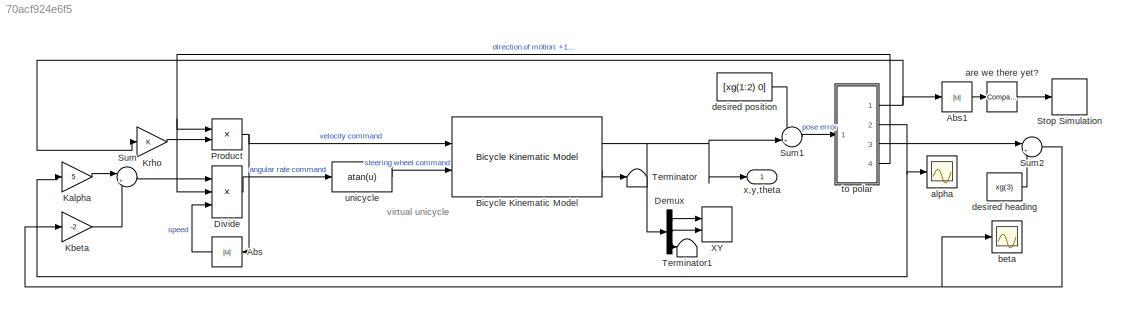
MODEL slx_70acf924e6f5
KIND model
CONFIG AbsTol = auto
CONFIG EnableMultiTasking = on
CONFIG FixedStep = auto
CONFIG InitFcn = if exist('x0')\n  assert(length(x0) == 3, 'x0 must be a 3-vector');\nelse\n  x0 = [9 5 0];\n  msgbox(sprintf('x0 not defined in workspace, setting it to [%g %g %g]\n', x0));\nend\nif exist('xg')\n  assert(length(xg) == 3, 'xg must be a 3-vector');\nelse\n  xg = [5 5 pi/2];\n  msgbox(sprintf('xg not defined in workspace, setting it to [%g %g %g]\n', xg));\nend\n% clean up old vehicle icons\nset(0, 'ShowHiddenHa...<+82ch>
CONFIG MaxStep = 0.05
CONFIG MinStep = auto
CONFIG RelTol = 1e-3
CONFIG SampleTimeConstraint = Unconstrained
CONFIG SolverName = ode45
CONFIG StartTime = 0.0
CONFIG StopFcn = % update the XY scope\nset(0, 'ShowHiddenHandles', 'on')\nfig = findobj('name', 'XY');\nax = findobj(fig, 'type', 'axes');\naxes(ax)\ngrid on\nhold on\nplotvehicle(x0, 'r', 'Tag', 'vehicle')\nplotvehicle(xg, 'b', 'Tag', 'vehicle')\nhold off\nset(0, 'ShowHiddenHandles', 'off')
CONFIG StopTime = 20.0
BLOCK [Abs] Abs
  SaturateOnIntegerOverflow = off
BLOCK [Abs] Abs1
  SaturateOnIntegerOverflow = off
BLOCK [Reference] Bicycle Kinematic Model  REF=robotmobilelib/Bicycle Kinematic Model
  Ports = [2, 2]
  SourceBlock = robotmobilelib/Bicycle Kinematic Model
  SourceProductBaseCode = RO
  SourceType = Bicycle Kinematic Model
BLOCK [Demux] Demux
  Outputs = 3
  Ports = [1, 3]
BLOCK [Product] Divide
  Inputs = **/
  Ports = [3, 1]
BLOCK [Gain] Kalpha
  Gain = 5
BLOCK [Gain] Kbeta
  Gain = -2
BLOCK [Gain] Krho
BLOCK [Product] Product
  Ports = [2, 1]
  RndMeth = Zero
BLOCK [Stop] Stop Simulation
BLOCK [Sum] Sum
  Inputs = |++
  Ports = [2, 1]
BLOCK [Sum] Sum1
  Inputs = -+|
  Ports = [2, 1]
BLOCK [Sum] Sum2
  Inputs = |++
  Ports = [2, 1]
BLOCK [Terminator] Terminator
BLOCK [Terminator] Terminator1
BLOCK [Record] XY
  CompatibilityTag = XY
  FileSettingsInternal = {"entries":[{"content":{"excelSettings":{"content":{},"type":"Streamout.ExcelSettings"}},"type":"Streamout.FileSettingStorage","uuid":"e61536f2-d743-43bf-ba78-b52ab6d756d0"}],"packageUris":["http://schema.mathworks.com/mf0/streamout_blocks/R2020a"],"version":"1.0"}
  Layout = [1 1]
  Ports = [2]
  SignalsInternal = {"entries":[{"content":{"signals":[{"content":{"blockPath":["sl_drivepose/XY"],"channel":[],"dimensions":[1],"domain":"sl_drivepose/XY","lineColor":"#a2142f","plots":[1],"port":1,"sid":[""],"signalID":1518,"signalName":"Demux:1"},"type":"RecordBlkView.Signal","uuid":"80e76c21-4405-485d-aecc-1056cab1049b"},{"content":{"blockPath":["sl_drivepose/XY"],"channel":[],"dimensions":[1],"domain":"sl_drivep...<+355ch>
  VisualizationBindings = {"xyplotplugin":{"info":[{"series":[{"bindingParametersList":[{"parameter":"X-Axis","signalID":1518,"signalName":"Demux:1"},{"parameter":"Y-Axis","signalID":1522,"signalName":"Demux:2"}],"seriesID":53984}],"subplotID":1}]}}
  st = -1
BLOCK [Scope] alpha
  Floating = off
  NumInputPorts = 1
  Ports = [1]
  ScopeSpecificationString = Simulink.scopes.TimeScopeBlockCfg('CurrentConfiguration', extmgr.ConfigurationSet(extmgr.Configuration('Core','General UI',true),extmgr.Configuration('Core','Source UI',true),extmgr.Configuration('Sources','WiredSimulink',true,'DataLoggingSaveFormat','StructureWithTime','DataLoggingDecimation','1'),extmgr.Configuration('Visuals','Time Domain',true,'SerializedDisplays',{struct('MinYLimReal','-1.846...<+1679ch>
BLOCK [Reference] are we there yet?  REF=simulink/Logic and Bit
Operations/Compare
To Constant
  Ports = [1, 1]
  SourceBlock = simulink/Logic and Bit\nOperations/Compare\nTo Constant
  SourceProductBaseCode = SL
  SourceType = Compare To Constant
BLOCK [Scope] beta
  Floating = off
  NumInputPorts = 1
  Ports = [1]
  ScopeSpecificationString = Simulink.scopes.TimeScopeBlockCfg('CurrentConfiguration', extmgr.ConfigurationSet(extmgr.Configuration('Core','General UI',true),extmgr.Configuration('Core','Source UI',true),extmgr.Configuration('Sources','WiredSimulink',true,'DataLoggingVariableName','ScopeData2','DataLoggingSaveFormat','StructureWithTime','DataLoggingDecimation','1'),extmgr.Configuration('Visuals','Time Domain',true,'Serialized...<+1707ch>
BLOCK [Constant] desired heading
  Value = xg(3)
BLOCK [Constant] desired position
  Value = [xg(1:2) 0]
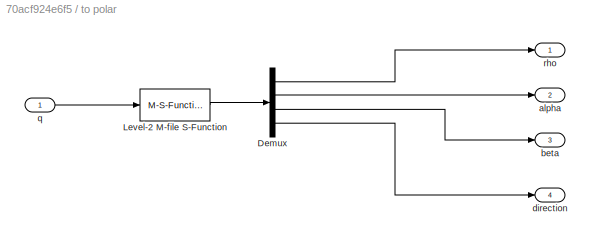
BLOCK [SubSystem] to polar
  Ports = [1, 4]
  RequestExecContextInheritance = off
BLOCK [Demux] to polar/Demux
  Ports = [1, 4]
BLOCK [M-S-Function] to polar/Level-2 M-file S-Function
  FunctionName = polar_sfunc
  Ports = [1, 1]
BLOCK [Outport] to polar/alpha
  Port = 2
  VectorParamsAs1DForOutWhenUnconnected = off
BLOCK [Outport] to polar/beta
  Port = 3
  VectorParamsAs1DForOutWhenUnconnected = off
BLOCK [Outport] to polar/direction
  Port = 4
  VectorParamsAs1DForOutWhenUnconnected = off
BLOCK [Inport] to polar/q
BLOCK [Outport] to polar/rho
  VectorParamsAs1DForOutWhenUnconnected = off
BLOCK [Fcn] unicycle 
  Expr = atan(u)
BLOCK [Outport] x,y,theta
  VectorParamsAs1DForOutWhenUnconnected = off
ANNOTATION (root): virtual unicycle
LINE Abs1:1 -> are we there yet?:1
LINE Abs:1 -> Divide:3
NET Bicycle Kinematic Model:1 -> Demux:1, Sum1:2, x,y,theta:1
LINE Bicycle Kinematic Model:2 -> Terminator:1
LINE Demux:1 -> XY:1
LINE Demux:2 -> XY:2
LINE Demux:3 -> Terminator1:1
LINE Divide:1 -> unicycle :1
LINE Kalpha:1 -> Sum:1
LINE Kbeta:1 -> Sum:2
LINE Krho:1 -> Product:2
NET Product:1 -> Abs:1, Bicycle Kinematic Model:1
LINE Sum1:1 -> to polar:1
NET Sum2:1 -> Kbeta:1, beta:1
LINE Sum:1 -> Divide:1
LINE are we there yet?:1 -> Stop Simulation:1
LINE desired heading:1 -> Sum2:2
LINE desired position:1 -> Sum1:1
LINE to polar/Demux:1 -> to polar/rho:1
LINE to polar/Demux:2 -> to polar/alpha:1
LINE to polar/Demux:3 -> to polar/beta:1
LINE to polar/Demux:4 -> to polar/direction:1
LINE to polar/Level-2 M-file S-Function:1 -> to polar/Demux:1
LINE to polar/q:1 -> to polar/Level-2 M-file S-Function:1
NET to polar:1 -> Abs1:1, Krho:1
NET to polar:2 -> Kalpha:1, alpha:1
LINE to polar:3 -> Sum2:1
NET to polar:4 -> Divide:2, Product:1
LINE unicycle :1 -> Bicycle Kinematic Model:2
note: NET lines group one-source signal fan-out (src -> all destinations, sorted); 1:1 wires keep LINE
